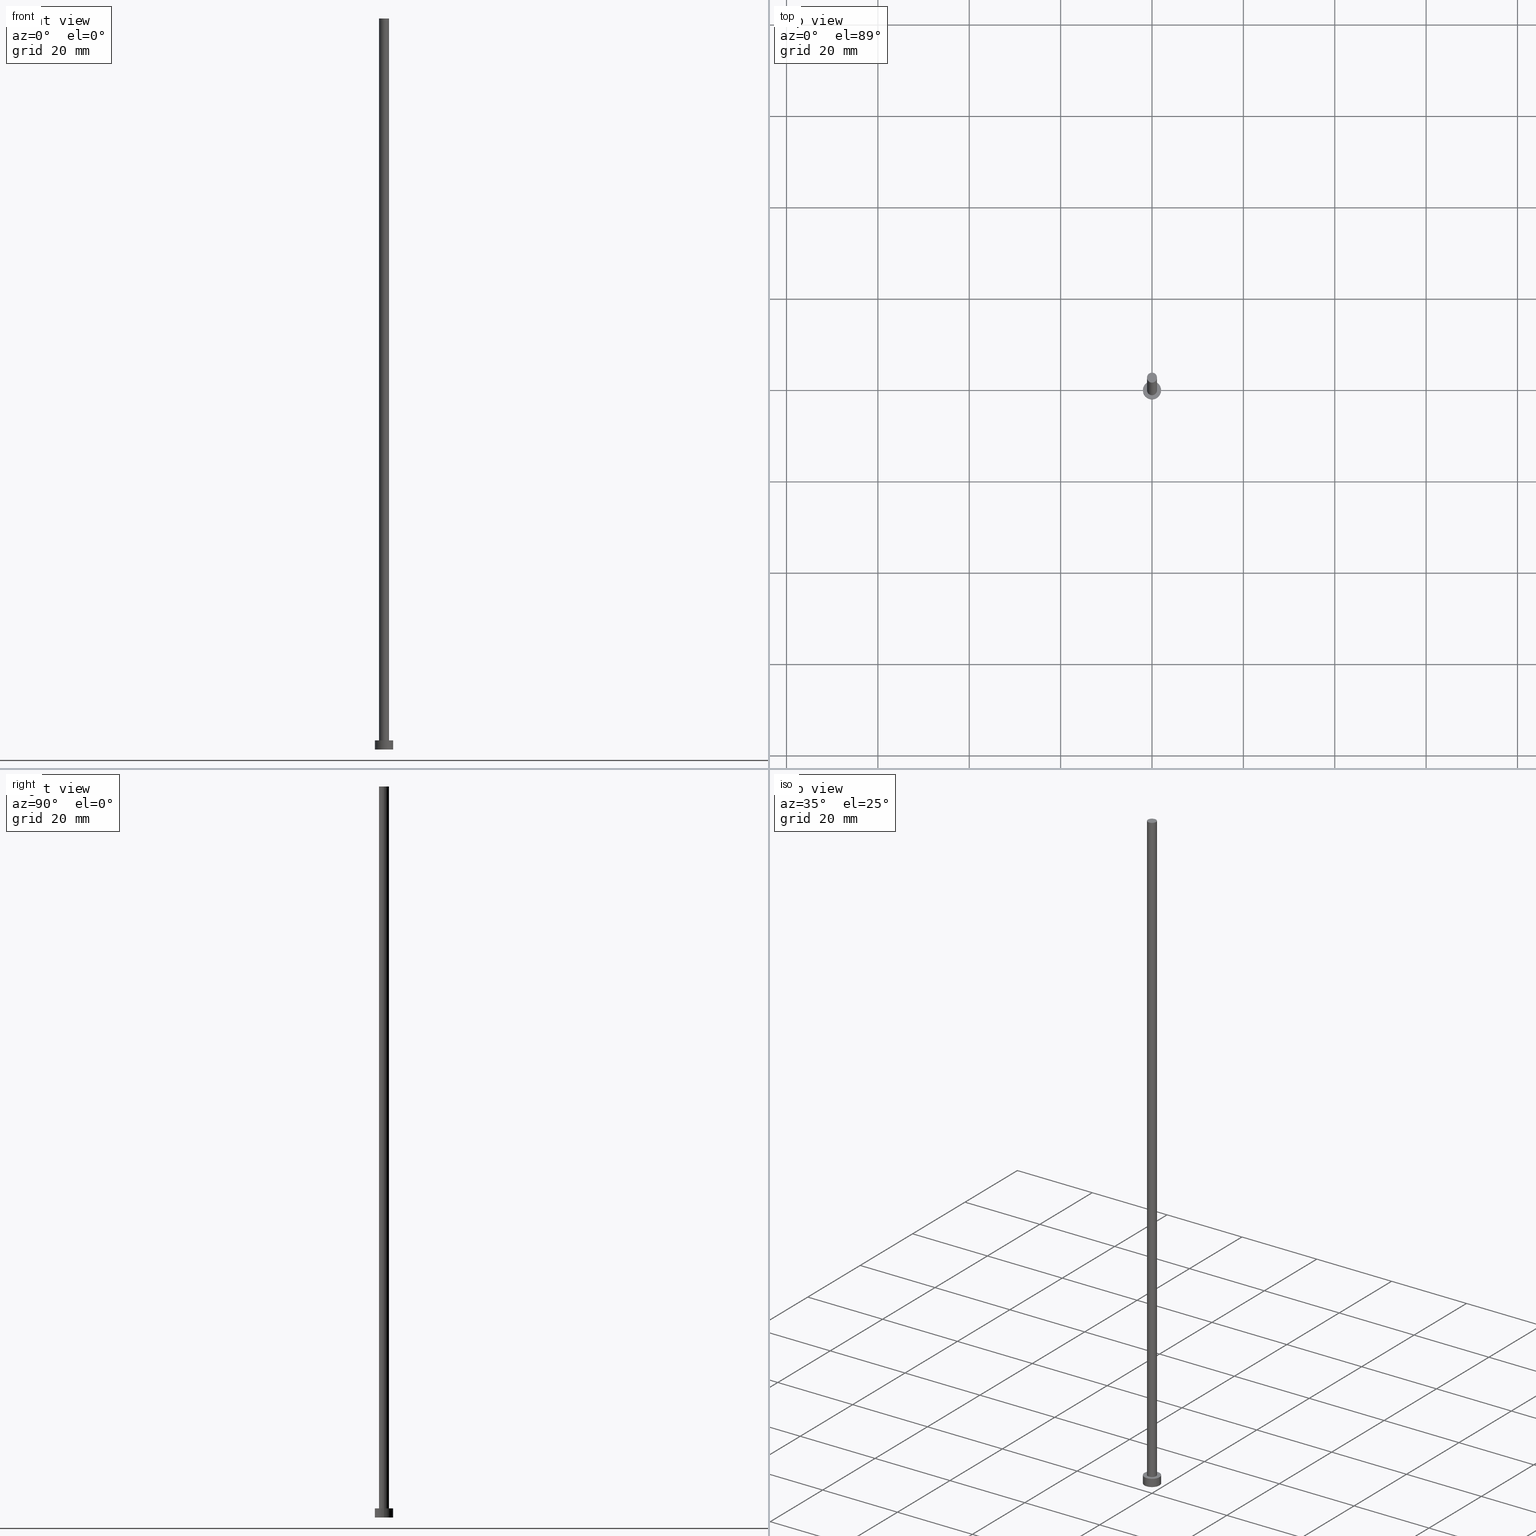
[diagram: canonical four-view strip — front | top / right | iso, engineering-drawing reading convention]
A machine part, canonical four-view strip (front | top / right | iso — engineering-drawing reading convention). The complete STEP part file that produces these views, byte-faithful:
ISO-10303-21;
HEADER;
FILE_DESCRIPTION (( 'STEP AP203' ),
    '1' );
FILE_NAME ('bac9.STEP',
    '2023-02-13T14:54:44',
    ( '' ),
    ( '' ),
    'SwSTEP 2.0',
    'SolidWorks 2019',
    '' );
FILE_SCHEMA (( 'CONFIG_CONTROL_DESIGN' ));
ENDSEC;

DATA;
#1 = CIRCLE ( 'NONE', #226, 2.000000000000000000 ) ;
#2 = LINE ( 'NONE', #237, #27 ) ;
#3 = DIRECTION ( 'NONE',  ( 0.000000000000000000, 0.000000000000000000, 1.000000000000000000 ) ) ;
#4 = CARTESIAN_POINT ( 'NONE',  ( -1.100000000000000089, 0.000000000000000000, 2.000000000000000000 ) ) ;
#5 = DIRECTION ( 'NONE',  ( 0.000000000000000000, 0.000000000000000000, 1.000000000000000000 ) ) ;
#6 = DIRECTION ( 'NONE',  ( -0.000000000000000000, -0.000000000000000000, -1.000000000000000000 ) ) ;
#7 = CARTESIAN_POINT ( 'NONE',  ( 0.000000000000000000, 0.000000000000000000, 0.000000000000000000 ) ) ;
#8 = VERTEX_POINT ( 'NONE', #93 ) ;
#9 = PERSON_AND_ORGANIZATION ( #91, #120 ) ;
#10 = AXIS2_PLACEMENT_3D ( 'NONE', #254, #54, #192 ) ;
#11 = VERTEX_POINT ( 'NONE', #151 ) ;
#12 = APPROVAL_ROLE ( '' ) ;
#13 = ORIENTED_EDGE ( 'NONE', *, *, #100, .T. ) ;
#14 = CALENDAR_DATE ( 2023, 13, 2 ) ;
#15 = PERSON_AND_ORGANIZATION ( #91, #120 ) ;
#16 = VERTEX_POINT ( 'NONE', #132 ) ;
#17 = CALENDAR_DATE ( 2023, 13, 2 ) ;
#18 = DIRECTION ( 'NONE',  ( 1.000000000000000000, 0.000000000000000000, 0.000000000000000000 ) ) ;
#19 = FACE_OUTER_BOUND ( 'NONE', #250, .T. ) ;
#20 = EDGE_CURVE ( 'NONE', #71, #16, #147, .T. ) ;
#21 = DIRECTION ( 'NONE',  ( -1.000000000000000000, 0.000000000000000000, 0.000000000000000000 ) ) ;
#22 = CIRCLE ( 'NONE', #179, 2.000000000000000000 ) ;
#23 = DIRECTION ( 'NONE',  ( 0.000000000000000000, 0.000000000000000000, 1.000000000000000000 ) ) ;
#24 = DIRECTION ( 'NONE',  ( 1.000000000000000000, 0.000000000000000000, 0.000000000000000000 ) ) ;
#25 = AXIS2_PLACEMENT_3D ( 'NONE', #94, #176, #153 ) ;
#26 = LOCAL_TIME ( 15, 54, 44.00000000000000000, #161 ) ;
#27 = VECTOR ( 'NONE', #112, 1000.000000000000000 ) ;
#28 = ORIENTED_EDGE ( 'NONE', *, *, #100, .F. ) ;
#29 = DIRECTION ( 'NONE',  ( 0.000000000000000000, 0.000000000000000000, 1.000000000000000000 ) ) ;
#30 = ORIENTED_EDGE ( 'NONE', *, *, #20, .F. ) ;
#31 = PERSON_AND_ORGANIZATION_ROLE ( 'creator' ) ;
#32 = EDGE_LOOP ( 'NONE', ( #48, #73 ) ) ;
#33 = CC_DESIGN_SECURITY_CLASSIFICATION ( #162, ( #69 ) ) ;
#34 = CALENDAR_DATE ( 2023, 13, 2 ) ;
#35 = EDGE_CURVE ( 'NONE', #16, #71, #47, .T. ) ;
#36 = PERSON_AND_ORGANIZATION_ROLE ( 'design_supplier' ) ;
#37 = FACE_OUTER_BOUND ( 'NONE', #32, .T. ) ;
#38 = CARTESIAN_POINT ( 'NONE',  ( -2.000000000000000000, 0.000000000000000000, 2.000000000000000000 ) ) ;
#39 = DIRECTION ( 'NONE',  ( -0.000000000000000000, -0.000000000000000000, -1.000000000000000000 ) ) ;
#40 = DIRECTION ( 'NONE',  ( 1.000000000000000000, 0.000000000000000000, 0.000000000000000000 ) ) ;
#41 = DIRECTION ( 'NONE',  ( 0.000000000000000000, 0.000000000000000000, 1.000000000000000000 ) ) ;
#42 = APPROVAL ( #191, 'NEUR�EN�' ) ;
#43 =( NAMED_UNIT ( * ) PLANE_ANGLE_UNIT ( ) SI_UNIT ( $, .RADIAN. ) );
#44 = CARTESIAN_POINT ( 'NONE',  ( 0.000000000000000000, 0.000000000000000000, 2.000000000000000000 ) ) ;
#45 = DIRECTION ( 'NONE',  ( 1.000000000000000000, 0.000000000000000000, 0.000000000000000000 ) ) ;
#46 = CARTESIAN_POINT ( 'NONE',  ( 1.100000000000000089, 1.347111479062088503E-16, 2.000000000000000000 ) ) ;
#47 = CIRCLE ( 'NONE', #244, 2.000000000000000000 ) ;
#48 = ORIENTED_EDGE ( 'NONE', *, *, #180, .T. ) ;
#49 = CC_DESIGN_PERSON_AND_ORGANIZATION_ASSIGNMENT ( #246, #70, ( #162 ) ) ;
#50 = EDGE_LOOP ( 'NONE', ( #186, #122, #86, #207 ) ) ;
#51 = DATE_AND_TIME ( #34, #26 ) ;
#52 = LOCAL_TIME ( 15, 54, 44.00000000000000000, #87 ) ;
#53 = ORIENTED_EDGE ( 'NONE', *, *, #35, .T. ) ;
#54 = DIRECTION ( 'NONE',  ( 0.000000000000000000, 0.000000000000000000, 1.000000000000000000 ) ) ;
#55 = PERSON_AND_ORGANIZATION ( #91, #120 ) ;
#56 = ORIENTED_EDGE ( 'NONE', *, *, #20, .T. ) ;
#57 = CYLINDRICAL_SURFACE ( 'NONE', #62, 2.000000000000000000 ) ;
#58 = PLANE ( 'NONE',  #81 ) ;
#59 = CARTESIAN_POINT ( 'NONE',  ( 0.000000000000000000, 0.000000000000000000, 0.000000000000000000 ) ) ;
#60 = LOCAL_TIME ( 15, 54, 44.00000000000000000, #74 ) ;
#61 = ADVANCED_FACE ( 'NONE', ( #78 ), #172, .T. ) ;
#62 = AXIS2_PLACEMENT_3D ( 'NONE', #215, #193, #131 ) ;
#63 =( NAMED_UNIT ( * ) SI_UNIT ( $, .STERADIAN. ) SOLID_ANGLE_UNIT ( ) );
#64 = MANIFOLD_SOLID_BREP ( 'P�idat vysunut�m3', #245 ) ;
#65 = CC_DESIGN_PERSON_AND_ORGANIZATION_ASSIGNMENT ( #55, #185, ( #69 ) ) ;
#66 = PRODUCT ( 'bac9', 'bac9', '', ( #225 ) ) ;
#67 = ORIENTED_EDGE ( 'NONE', *, *, #199, .T. ) ;
#68 = APPROVAL_STATUS ( 'not_yet_approved' ) ;
#69 = PRODUCT_DEFINITION_FORMATION_WITH_SPECIFIED_SOURCE ( 'LIBOVOLN�', '', #66, .NOT_KNOWN. ) ;
#70 = PERSON_AND_ORGANIZATION_ROLE ( 'classification_officer' ) ;
#71 = VERTEX_POINT ( 'NONE', #38 ) ;
#72 = AXIS2_PLACEMENT_3D ( 'NONE', #44, #99, #45 ) ;
#73 = ORIENTED_EDGE ( 'NONE', *, *, #240, .T. ) ;
#74 = COORDINATED_UNIVERSAL_TIME_OFFSET ( 1, 0, .AHEAD. ) ;
#75 = DIRECTION ( 'NONE',  ( 1.000000000000000000, 0.000000000000000000, -0.000000000000000000 ) ) ;
#76 = PLANE ( 'NONE',  #160 ) ;
#77 = PLANE ( 'NONE',  #10 ) ;
#78 = FACE_OUTER_BOUND ( 'NONE', #142, .T. ) ;
#79 = APPROVAL ( #248, 'NEUR�EN�' ) ;
#80 = CARTESIAN_POINT ( 'NONE',  ( 2.000000000000000000, 2.449293598294706414E-16, 2.000000000000000000 ) ) ;
#81 = AXIS2_PLACEMENT_3D ( 'NONE', #173, #109, #75 ) ;
#82 = CYLINDRICAL_SURFACE ( 'NONE', #123, 1.100000000000000089 ) ;
#83 = LOCAL_TIME ( 15, 54, 44.00000000000000000, #253 ) ;
#84 = ORIENTED_EDGE ( 'NONE', *, *, #35, .F. ) ;
#85 = APPROVAL_ROLE ( '' ) ;
#86 = ORIENTED_EDGE ( 'NONE', *, *, #96, .T. ) ;
#87 = COORDINATED_UNIVERSAL_TIME_OFFSET ( 1, 0, .AHEAD. ) ;
#88 = PERSON_AND_ORGANIZATION ( #91, #120 ) ;
#89 = COORDINATED_UNIVERSAL_TIME_OFFSET ( 1, 0, .AHEAD. ) ;
#90 = LINE ( 'NONE', #255, #252 ) ;
#91 = PERSON ( 'NEUR�EN�', 'NEUR�EN�', 'NEUR�EN�', ('NEUR�EN�'), ('NEUR�EN�'), ('NEUR�EN�') ) ;
#92 = CARTESIAN_POINT ( 'NONE',  ( 0.000000000000000000, 0.000000000000000000, 160.0000000000000000 ) ) ;
#93 = CARTESIAN_POINT ( 'NONE',  ( -1.100000000000000089, 0.000000000000000000, 160.0000000000000000 ) ) ;
#94 = CARTESIAN_POINT ( 'NONE',  ( 0.000000000000000000, 0.000000000000000000, 2.000000000000000000 ) ) ;
#95 = CARTESIAN_POINT ( 'NONE',  ( 0.000000000000000000, 0.000000000000000000, 2.000000000000000000 ) ) ;
#96 = EDGE_CURVE ( 'NONE', #247, #184, #139, .T. ) ;
#97 = CIRCLE ( 'NONE', #212, 1.100000000000000089 ) ;
#98 = DIRECTION ( 'NONE',  ( 1.000000000000000000, 0.000000000000000000, 0.000000000000000000 ) ) ;
#99 = DIRECTION ( 'NONE',  ( 0.000000000000000000, 0.000000000000000000, 1.000000000000000000 ) ) ;
#100 = EDGE_CURVE ( 'NONE', #71, #11, #90, .T. ) ;
#101 = APPLICATION_PROTOCOL_DEFINITION ( 'international standard', 'config_control_design', 1994, #182 ) ;
#102 = EDGE_CURVE ( 'NONE', #104, #247, #213, .T. ) ;
#103 = DESIGN_CONTEXT ( 'detailed design', #167, 'design' ) ;
#104 = VERTEX_POINT ( 'NONE', #111 ) ;
#105 = APPROVAL_DATE_TIME ( #138, #42 ) ;
#106 = APPROVAL_DATE_TIME ( #51, #79 ) ;
#107 = ORIENTED_EDGE ( 'NONE', *, *, #227, .F. ) ;
#108 = ORIENTED_EDGE ( 'NONE', *, *, #199, .F. ) ;
#109 = DIRECTION ( 'NONE',  ( 0.000000000000000000, 0.000000000000000000, 1.000000000000000000 ) ) ;
#110 = APPROVAL_PERSON_ORGANIZATION ( #187, #42, #12 ) ;
#111 = CARTESIAN_POINT ( 'NONE',  ( 1.100000000000000089, 1.347111479062088503E-16, 160.0000000000000000 ) ) ;
#112 = DIRECTION ( 'NONE',  ( -0.000000000000000000, -0.000000000000000000, -1.000000000000000000 ) ) ;
#113 = ADVANCED_FACE ( 'NONE', ( #37 ), #77, .T. ) ;
#114 = FACE_OUTER_BOUND ( 'NONE', #169, .T. ) ;
#115 = CARTESIAN_POINT ( 'NONE',  ( 0.000000000000000000, 0.000000000000000000, 0.000000000000000000 ) ) ;
#116 = DIRECTION ( 'NONE',  ( -0.000000000000000000, -0.000000000000000000, -1.000000000000000000 ) ) ;
#117 = CARTESIAN_POINT ( 'NONE',  ( 0.000000000000000000, 0.000000000000000000, 0.000000000000000000 ) ) ;
#118 = CC_DESIGN_APPROVAL ( #79, ( #174 ) ) ;
#119 = DIRECTION ( 'NONE',  ( 1.000000000000000000, 0.000000000000000000, 0.000000000000000000 ) ) ;
#120 = ORGANIZATION ( 'NEUR�EN�', 'NEUR�EN�', '' ) ;
#121 = APPROVAL_DATE_TIME ( #228, #208 ) ;
#122 = ORIENTED_EDGE ( 'NONE', *, *, #102, .T. ) ;
#123 = AXIS2_PLACEMENT_3D ( 'NONE', #156, #6, #241 ) ;
#124 = VERTEX_POINT ( 'NONE', #145 ) ;
#125 = DATE_AND_TIME ( #166, #52 ) ;
#126 = DIRECTION ( 'NONE',  ( 1.000000000000000000, 0.000000000000000000, 0.000000000000000000 ) ) ;
#127 = APPROVAL_ROLE ( '' ) ;
#128 = VECTOR ( 'NONE', #129, 1000.000000000000000 ) ;
#129 = DIRECTION ( 'NONE',  ( -0.000000000000000000, -0.000000000000000000, -1.000000000000000000 ) ) ;
#130 = APPROVAL_PERSON_ORGANIZATION ( #164, #79, #85 ) ;
#131 = DIRECTION ( 'NONE',  ( -1.000000000000000000, 0.000000000000000000, 0.000000000000000000 ) ) ;
#132 = CARTESIAN_POINT ( 'NONE',  ( 2.000000000000000000, 2.449293598294706414E-16, 2.000000000000000000 ) ) ;
#133 = CARTESIAN_POINT ( 'NONE',  ( 0.000000000000000000, 0.000000000000000000, 2.000000000000000000 ) ) ;
#134 = CC_DESIGN_PERSON_AND_ORGANIZATION_ASSIGNMENT ( #9, #196, ( #66 ) ) ;
#135 = VECTOR ( 'NONE', #232, 1000.000000000000000 ) ;
#136 = ORIENTED_EDGE ( 'NONE', *, *, #220, .F. ) ;
#137 = ORIENTED_EDGE ( 'NONE', *, *, #220, .T. ) ;
#138 = DATE_AND_TIME ( #17, #60 ) ;
#139 = CIRCLE ( 'NONE', #216, 1.100000000000000089 ) ;
#140 = AXIS2_PLACEMENT_3D ( 'NONE', #194, #23, #24 ) ;
#141 =( GEOMETRIC_REPRESENTATION_CONTEXT ( 3 ) GLOBAL_UNCERTAINTY_ASSIGNED_CONTEXT ( ( #203 ) ) GLOBAL_UNIT_ASSIGNED_CONTEXT ( ( #223, #43, #63 ) ) REPRESENTATION_CONTEXT ( 'NONE', 'WORKASPACE' ) );
#142 = EDGE_LOOP ( 'NONE', ( #108, #30, #13, #143 ) ) ;
#143 = ORIENTED_EDGE ( 'NONE', *, *, #242, .T. ) ;
#144 = DATE_AND_TIME ( #14, #202 ) ;
#145 = CARTESIAN_POINT ( 'NONE',  ( 2.000000000000000000, 2.449293598294706414E-16, 0.000000000000000000 ) ) ;
#146 = ADVANCED_FACE ( 'NONE', ( #19 ), #211, .T. ) ;
#147 = CIRCLE ( 'NONE', #154, 2.000000000000000000 ) ;
#148 = PRODUCT_DEFINITION_SHAPE ( 'NONE', 'NONE',  #174 ) ;
#149 = FACE_OUTER_BOUND ( 'NONE', #163, .T. ) ;
#150 = CC_DESIGN_DATE_AND_TIME_ASSIGNMENT ( #144, #171, ( #162 ) ) ;
#151 = CARTESIAN_POINT ( 'NONE',  ( -2.000000000000000000, 0.000000000000000000, 0.000000000000000000 ) ) ;
#152 = EDGE_CURVE ( 'NONE', #8, #184, #2, .T. ) ;
#153 = DIRECTION ( 'NONE',  ( -1.000000000000000000, 0.000000000000000000, 0.000000000000000000 ) ) ;
#154 = AXIS2_PLACEMENT_3D ( 'NONE', #133, #3, #18 ) ;
#155 = DIRECTION ( 'NONE',  ( 0.000000000000000000, 0.000000000000000000, 1.000000000000000000 ) ) ;
#156 = CARTESIAN_POINT ( 'NONE',  ( 0.000000000000000000, 0.000000000000000000, 160.0000000000000000 ) ) ;
#157 = AXIS2_PLACEMENT_3D ( 'NONE', #92, #116, #21 ) ;
#158 = AXIS2_PLACEMENT_3D ( 'NONE', #115, #29, #243 ) ;
#159 = ADVANCED_FACE ( 'NONE', ( #239, #114 ), #58, .T. ) ;
#160 = AXIS2_PLACEMENT_3D ( 'NONE', #59, #41, #197 ) ;
#161 = COORDINATED_UNIVERSAL_TIME_OFFSET ( 1, 0, .AHEAD. ) ;
#162 = SECURITY_CLASSIFICATION ( '', '', #170 ) ;
#163 = EDGE_LOOP ( 'NONE', ( #165, #107 ) ) ;
#164 = PERSON_AND_ORGANIZATION ( #91, #120 ) ;
#165 = ORIENTED_EDGE ( 'NONE', *, *, #242, .F. ) ;
#166 = CALENDAR_DATE ( 2023, 13, 2 ) ;
#167 = APPLICATION_CONTEXT ( 'configuration controlled 3d designs of mechanical parts and assemblies' ) ;
#168 = ADVANCED_FACE ( 'NONE', ( #149 ), #76, .F. ) ;
#169 = EDGE_LOOP ( 'NONE', ( #56, #53 ) ) ;
#170 = SECURITY_CLASSIFICATION_LEVEL ( 'unclassified' ) ;
#171 = DATE_TIME_ROLE ( 'classification_date' ) ;
#172 = CYLINDRICAL_SURFACE ( 'NONE', #25, 2.000000000000000000 ) ;
#173 = CARTESIAN_POINT ( 'NONE',  ( 0.000000000000000000, 0.000000000000000000, 2.000000000000000000 ) ) ;
#174 = PRODUCT_DEFINITION ( 'NEZN�M�', '', #69, #103 ) ;
#175 = CARTESIAN_POINT ( 'NONE',  ( 0.000000000000000000, 0.000000000000000000, 2.000000000000000000 ) ) ;
#176 = DIRECTION ( 'NONE',  ( -0.000000000000000000, -0.000000000000000000, -1.000000000000000000 ) ) ;
#177 = ADVANCED_FACE ( 'NONE', ( #190 ), #57, .T. ) ;
#178 = LINE ( 'NONE', #80, #135 ) ;
#179 = AXIS2_PLACEMENT_3D ( 'NONE', #117, #200, #119 ) ;
#180 = EDGE_CURVE ( 'NONE', #8, #104, #235, .T. ) ;
#181 = CARTESIAN_POINT ( 'NONE',  ( 0.000000000000000000, 0.000000000000000000, 160.0000000000000000 ) ) ;
#182 = APPLICATION_CONTEXT ( 'configuration controlled 3d designs of mechanical parts and assemblies' ) ;
#183 = CC_DESIGN_APPROVAL ( #208, ( #162 ) ) ;
#184 = VERTEX_POINT ( 'NONE', #4 ) ;
#185 = PERSON_AND_ORGANIZATION_ROLE ( 'creator' ) ;
#186 = ORIENTED_EDGE ( 'NONE', *, *, #240, .F. ) ;
#187 = PERSON_AND_ORGANIZATION ( #91, #120 ) ;
#188 = ORIENTED_EDGE ( 'NONE', *, *, #96, .F. ) ;
#189 = DATE_TIME_ROLE ( 'creation_date' ) ;
#190 = FACE_OUTER_BOUND ( 'NONE', #206, .T. ) ;
#191 = APPROVAL_STATUS ( 'not_yet_approved' ) ;
#192 = DIRECTION ( 'NONE',  ( 1.000000000000000000, 0.000000000000000000, -0.000000000000000000 ) ) ;
#193 = DIRECTION ( 'NONE',  ( -0.000000000000000000, -0.000000000000000000, -1.000000000000000000 ) ) ;
#194 = CARTESIAN_POINT ( 'NONE',  ( 0.000000000000000000, 0.000000000000000000, 160.0000000000000000 ) ) ;
#195 = APPROVAL_PERSON_ORGANIZATION ( #88, #208, #127 ) ;
#196 = PERSON_AND_ORGANIZATION_ROLE ( 'design_owner' ) ;
#197 = DIRECTION ( 'NONE',  ( 1.000000000000000000, 0.000000000000000000, -0.000000000000000000 ) ) ;
#198 = ADVANCED_BREP_SHAPE_REPRESENTATION ( 'bac9', ( #64, #158 ), #141 ) ;
#199 = EDGE_CURVE ( 'NONE', #16, #124, #178, .T. ) ;
#200 = DIRECTION ( 'NONE',  ( 0.000000000000000000, 0.000000000000000000, 1.000000000000000000 ) ) ;
#201 = CIRCLE ( 'NONE', #72, 1.100000000000000089 ) ;
#202 = LOCAL_TIME ( 15, 54, 44.00000000000000000, #89 ) ;
#203 = UNCERTAINTY_MEASURE_WITH_UNIT (LENGTH_MEASURE( 1.000000000000000082E-05 ), #223, 'distance_accuracy_value', 'NONE');
#204 = CC_DESIGN_DATE_AND_TIME_ASSIGNMENT ( #125, #189, ( #174 ) ) ;
#205 = ORIENTED_EDGE ( 'NONE', *, *, #102, .F. ) ;
#206 = EDGE_LOOP ( 'NONE', ( #84, #67, #210, #28 ) ) ;
#207 = ORIENTED_EDGE ( 'NONE', *, *, #152, .F. ) ;
#208 = APPROVAL ( #68, 'NEUR�EN�' ) ;
#209 = EDGE_LOOP ( 'NONE', ( #136, #188 ) ) ;
#210 = ORIENTED_EDGE ( 'NONE', *, *, #227, .T. ) ;
#211 = CYLINDRICAL_SURFACE ( 'NONE', #157, 1.100000000000000089 ) ;
#212 = AXIS2_PLACEMENT_3D ( 'NONE', #181, #5, #98 ) ;
#213 = LINE ( 'NONE', #214, #128 ) ;
#214 = CARTESIAN_POINT ( 'NONE',  ( 1.100000000000000089, 1.347111479062088503E-16, 160.0000000000000000 ) ) ;
#215 = CARTESIAN_POINT ( 'NONE',  ( 0.000000000000000000, 0.000000000000000000, 2.000000000000000000 ) ) ;
#216 = AXIS2_PLACEMENT_3D ( 'NONE', #175, #217, #126 ) ;
#217 = DIRECTION ( 'NONE',  ( 0.000000000000000000, 0.000000000000000000, 1.000000000000000000 ) ) ;
#218 = CC_DESIGN_PERSON_AND_ORGANIZATION_ASSIGNMENT ( #233, #31, ( #174 ) ) ;
#219 = DIRECTION ( 'NONE',  ( 1.000000000000000000, 0.000000000000000000, 0.000000000000000000 ) ) ;
#220 = EDGE_CURVE ( 'NONE', #184, #247, #201, .T. ) ;
#221 = PRODUCT_RELATED_PRODUCT_CATEGORY ( 'detail', '', ( #66 ) ) ;
#222 = CC_DESIGN_APPROVAL ( #42, ( #69 ) ) ;
#223 =( LENGTH_UNIT ( ) NAMED_UNIT ( * ) SI_UNIT ( .MILLI., .METRE. ) );
#224 = FACE_OUTER_BOUND ( 'NONE', #50, .T. ) ;
#225 = MECHANICAL_CONTEXT ( 'NONE', #182, 'mechanical' ) ;
#226 = AXIS2_PLACEMENT_3D ( 'NONE', #7, #155, #219 ) ;
#227 = EDGE_CURVE ( 'NONE', #124, #11, #22, .T. ) ;
#228 = DATE_AND_TIME ( #251, #83 ) ;
#229 = ORIENTED_EDGE ( 'NONE', *, *, #152, .T. ) ;
#230 = SHAPE_DEFINITION_REPRESENTATION ( #148, #198 ) ;
#231 = APPLICATION_PROTOCOL_DEFINITION ( 'international standard', 'config_control_design', 1994, #167 ) ;
#232 = DIRECTION ( 'NONE',  ( -0.000000000000000000, -0.000000000000000000, -1.000000000000000000 ) ) ;
#233 = PERSON_AND_ORGANIZATION ( #91, #120 ) ;
#234 = ORIENTED_EDGE ( 'NONE', *, *, #180, .F. ) ;
#235 = CIRCLE ( 'NONE', #140, 1.100000000000000089 ) ;
#236 = DIRECTION ( 'NONE',  ( 0.000000000000000000, 0.000000000000000000, 1.000000000000000000 ) ) ;
#237 = CARTESIAN_POINT ( 'NONE',  ( -1.100000000000000089, 0.000000000000000000, 160.0000000000000000 ) ) ;
#238 = CC_DESIGN_PERSON_AND_ORGANIZATION_ASSIGNMENT ( #15, #36, ( #69 ) ) ;
#239 = FACE_BOUND ( 'NONE', #209, .T. ) ;
#240 = EDGE_CURVE ( 'NONE', #104, #8, #97, .T. ) ;
#241 = DIRECTION ( 'NONE',  ( -1.000000000000000000, 0.000000000000000000, 0.000000000000000000 ) ) ;
#242 = EDGE_CURVE ( 'NONE', #11, #124, #1, .T. ) ;
#243 = DIRECTION ( 'NONE',  ( 1.000000000000000000, 0.000000000000000000, 0.000000000000000000 ) ) ;
#244 = AXIS2_PLACEMENT_3D ( 'NONE', #95, #236, #40 ) ;
#245 = CLOSED_SHELL ( 'NONE', ( #249, #177, #61, #159, #168, #146, #113 ) ) ;
#246 = PERSON_AND_ORGANIZATION ( #91, #120 ) ;
#247 = VERTEX_POINT ( 'NONE', #46 ) ;
#248 = APPROVAL_STATUS ( 'not_yet_approved' ) ;
#249 = ADVANCED_FACE ( 'NONE', ( #224 ), #82, .T. ) ;
#250 = EDGE_LOOP ( 'NONE', ( #205, #234, #229, #137 ) ) ;
#251 = CALENDAR_DATE ( 2023, 13, 2 ) ;
#252 = VECTOR ( 'NONE', #39, 1000.000000000000000 ) ;
#253 = COORDINATED_UNIVERSAL_TIME_OFFSET ( 1, 0, .AHEAD. ) ;
#254 = CARTESIAN_POINT ( 'NONE',  ( 0.000000000000000000, 0.000000000000000000, 160.0000000000000000 ) ) ;
#255 = CARTESIAN_POINT ( 'NONE',  ( -2.000000000000000000, 0.000000000000000000, 2.000000000000000000 ) ) ;
ENDSEC;
END-ISO-10303-21;
